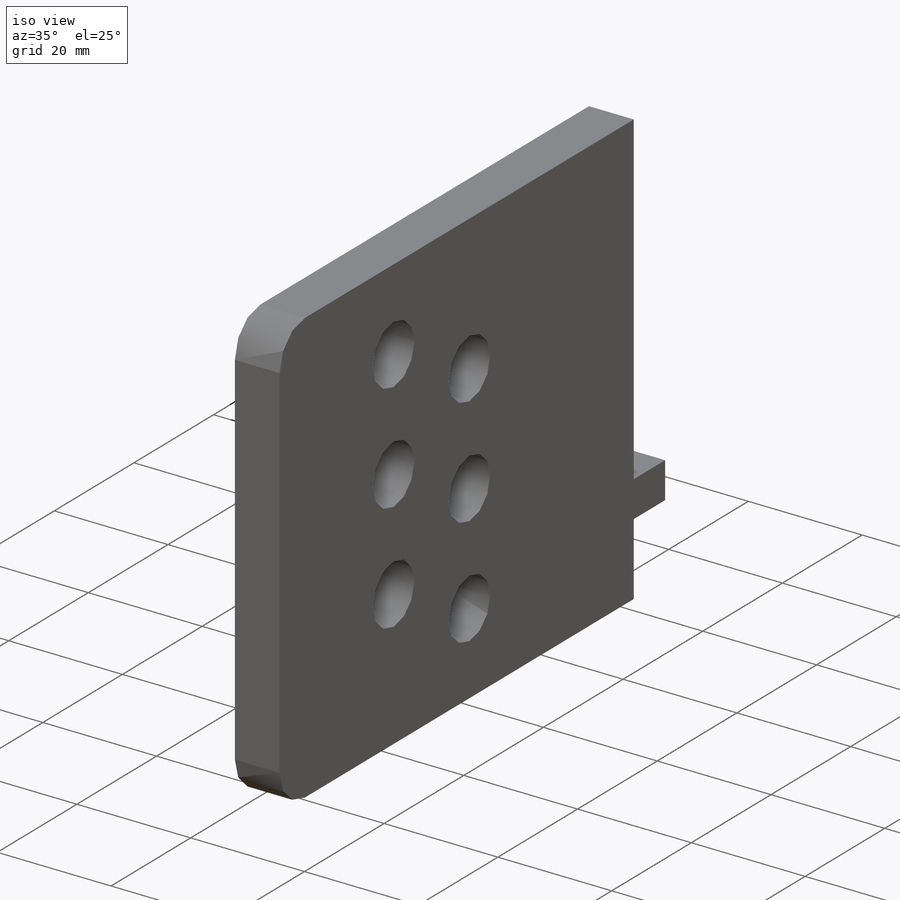
[diagram: iso view]
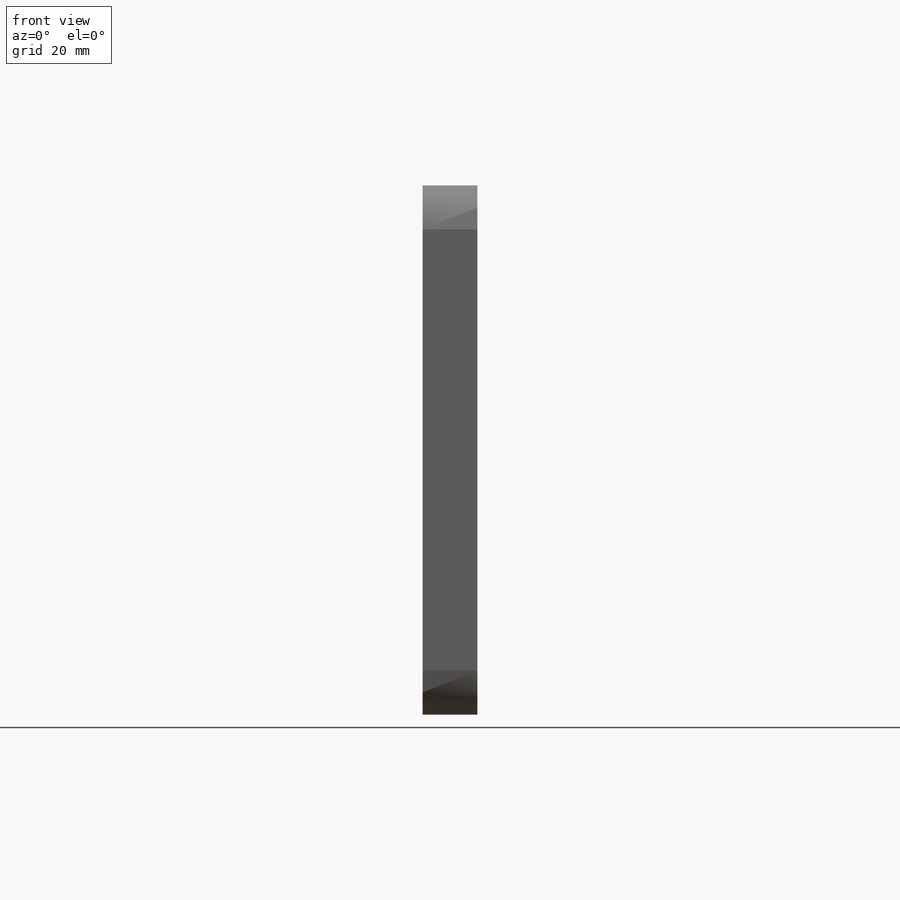
[diagram: front view]
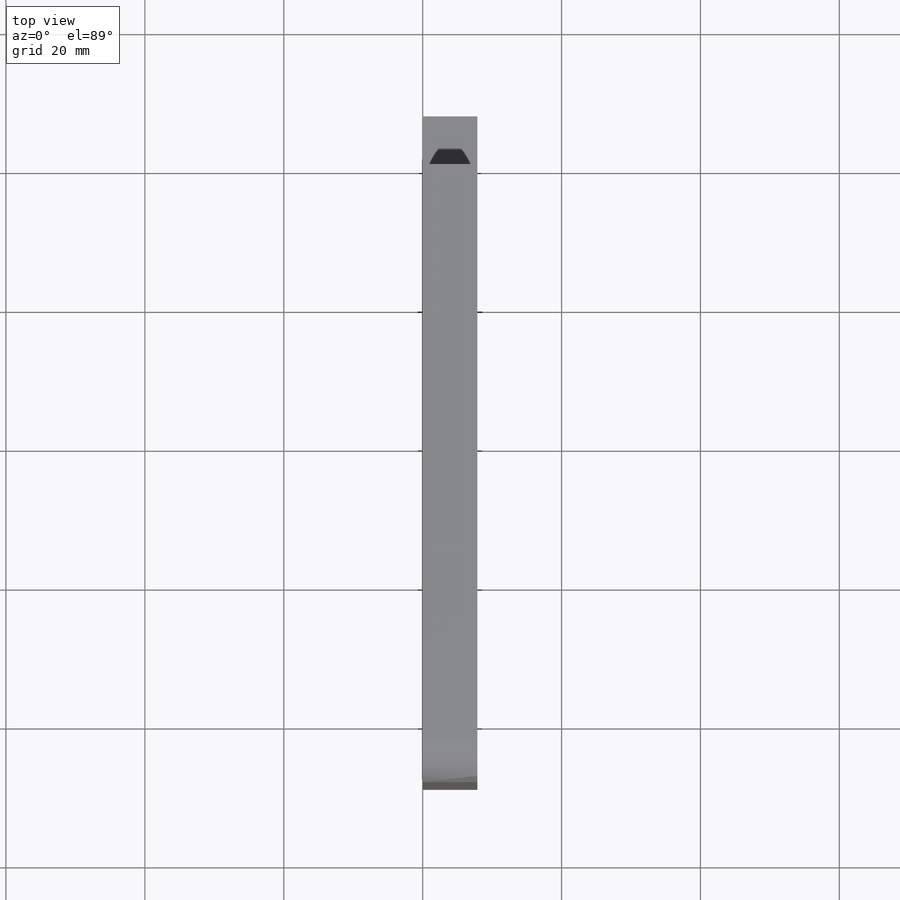
[diagram: top view]
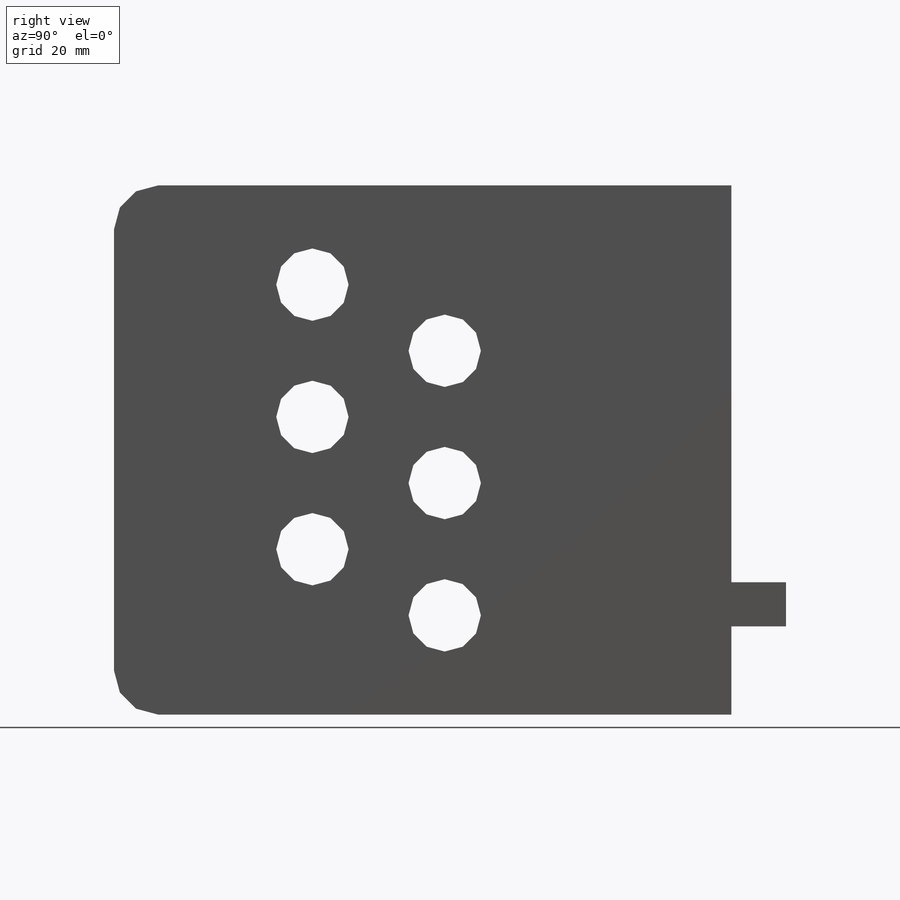
[diagram: right view]
SOLIDWORKS PART (.sldprt)
format: sldprt  version: not decoded by parser v0  size: 346,624 bytes
history: native  units: mm
features: sketch x3, extrude x2, material x1, plane x1, cut_extrude x1, fillet x1 (+11 scaffold rows collapsed)
feature tree (20):
  scaffold x11  (default folders/planes/origin — collapsed)
  material  "ASTM A36"
  plane  "Side"
  sketch  "Sketch1"  dims[D1=76.2mm D2=7.874mm]
  extrude  "Extrude1"  Depth=88.9mm
  sketch  "Sketch2"  dims[c1.D1=25.4mm c1.D3=25.4mm c2.D1=10.414mm c2.D4=12.7mm c3.D1=10.414mm c3.D2=25.4mm c3.D3=25.4mm c3.D5=~15.309563mm c3.D6=10.414mm c3.D7=~14.102733mm c3.D8=~14.658387mm c3.D9=10.414mm c3.D4=10.414mm c4.D5=10.414mm c4.D6=10.414mm c4.D7=10.414mm c4.D8=10.414mm c4.D9=10.414mm c4.D10=10.414mm c4.D2=10.414mm c5.D10=10.414mm c5.D2=38.1mm c5.D3=38.1mm c6.D2=38.1mm c6.D3=38.1mm c6.D4=25.4mm c7.D2=19.05mm c7.D3=28.575mm c7.D4=19.05mm c7.D5=19.05mm c7.D6=19.05mm c7.D7=19.05mm c7.D8=25.4mm c7.D9=9.525mm c8.D4=19.05mm c8.D5=19.05mm c8.D6=19.05mm c8.D7=19.05mm c8.D8=19.05mm c8.D9=9.525mm c8.D10=88.9mm c8.D2=14.2875mm c9.D10=~21.298547mm c10.D10=~63.434949deg c11.D10=76.2mm c12.D10=~63.434949deg c13.D10=38.1mm]
  cut_extrude  "Cut-Extrude1"  [1 undecoded]
  fillet  "Fillet1"  Radius=6.35mm
  sketch  "Sketch3"  dims[D1=6.35mm D2=12.7mm]
  extrude  "Extrude2"  Depth=7.874mm
decode coverage: 6 of 7 modeling features carry decoded parameters
note: ~ marks probable driven/reference dimensions
note: 1 parameter value undecoded
note: suppression state not decoded; provenance and decode notes live in map.json
